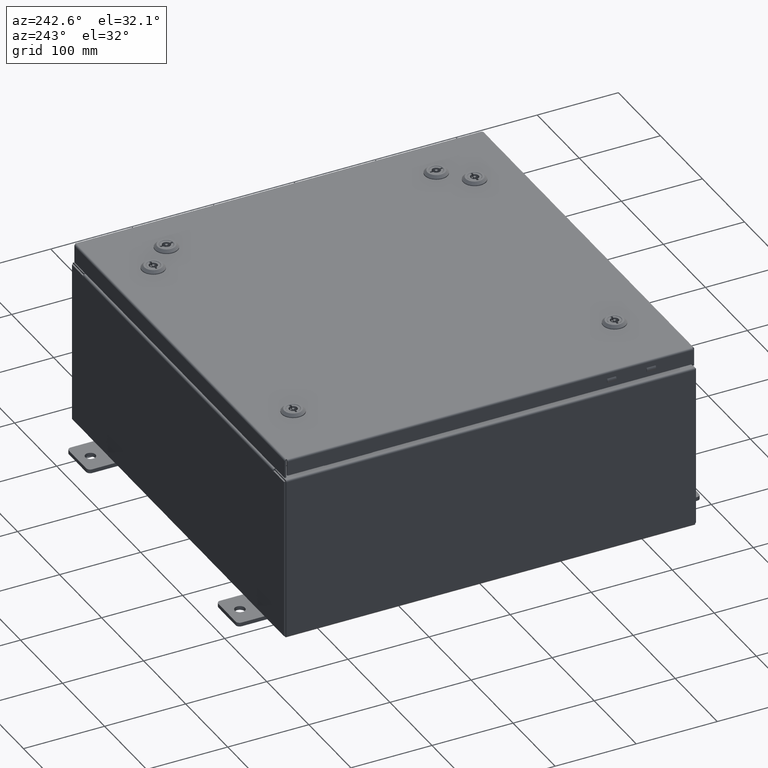
[diagram: clean part render]
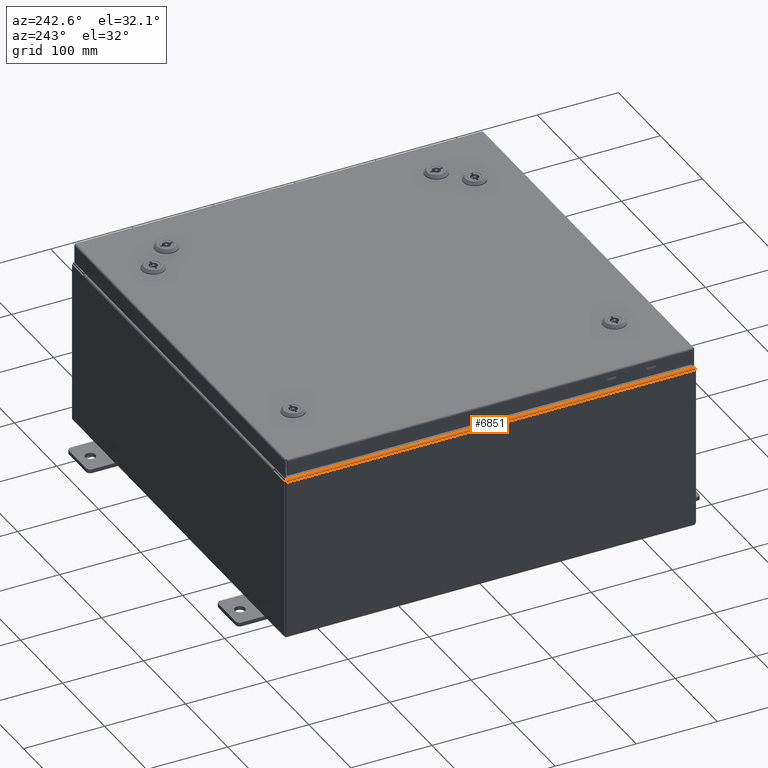
[diagram: same view with one face highlighted and labeled with its STEP entity id]
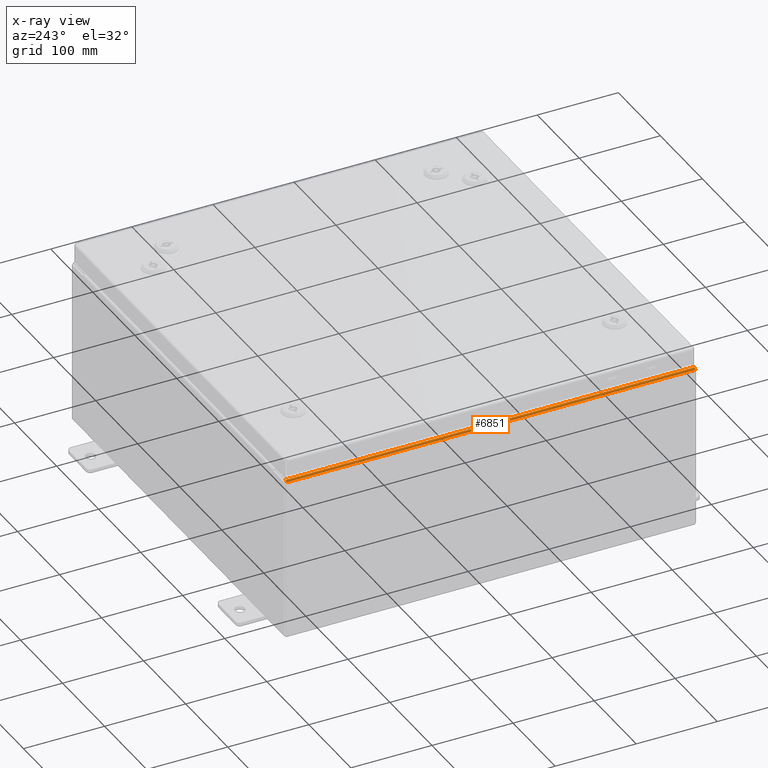
[diagram: x-ray of the same camera — body ghosted, the highlighted face saturated]
A machine part, auxiliary view. The second image highlights one B-rep face of the part: STEP entity #6851.
The next image is the same camera in x-ray: the body ghosted, the highlighted face saturated — about 0% of this face is hidden behind the body in this view.
In plain terms, the highlighted cylindrical surface (edge-blend (fillet) strip) has radius 2.2276 mm, axis along (-0, -1, -0).
Its self-contained STEP definition (entity closure, byte-faithful):
#435 = CIRCLE ( 'NONE', #29998, 0.08770000000000026400 ) ;
#1026 = CARTESIAN_POINT ( 'NONE',  ( -9.912300000000028500, -9.925299999999996500, 7.837599999999999200 ) ) ;
#1139 = ORIENTED_EDGE ( 'NONE', *, *, #30104, .T. ) ;
#2248 = EDGE_CURVE ( 'NONE', #27535, #30798, #52744, .T. ) ;
#3602 = CYLINDRICAL_SURFACE ( 'NONE', #40241, 0.08770000000000026400 ) ;
#5966 = DIRECTION ( 'NONE',  ( 0.0000000000000000000, 0.0000000000000000000, -1.000000000000000000 ) ) ;
#6851 = ADVANCED_FACE ( 'NONE', ( #55697 ), #3602, .T. ) ;
#8060 = EDGE_CURVE ( 'NONE', #30798, #60301, #435, .T. ) ;
#9919 = CARTESIAN_POINT ( 'NONE',  ( -9.912300000000028500, -9.925299999999998200, 7.925300000000000000 ) ) ;
#12184 = CARTESIAN_POINT ( 'NONE',  ( -9.912300000000028500, 9.925299999999998200, 7.925300000000000000 ) ) ;
#13886 = LINE ( 'NONE', #38070, #51490 ) ;
#15143 = VECTOR ( 'NONE', #39104, 39.37007874015748100 ) ;
#23411 = DIRECTION ( 'NONE',  ( 0.0000000000000000000, 1.000000000000000000, 0.0000000000000000000 ) ) ;
#24413 = CARTESIAN_POINT ( 'NONE',  ( -9.912300000000028500, -9.925299999999998200, 7.837599999999999200 ) ) ;
#27535 = VERTEX_POINT ( 'NONE', #31570 ) ;
#29349 = DIRECTION ( 'NONE',  ( 0.0000000000000000000, 0.0000000000000000000, 1.000000000000000000 ) ) ;
#29998 = AXIS2_PLACEMENT_3D ( 'NONE', #52820, #23411, #57725 ) ;
#30104 = EDGE_CURVE ( 'NONE', #38815, #60301, #13886, .T. ) ;
#30798 = VERTEX_POINT ( 'NONE', #36556 ) ;
#31570 = CARTESIAN_POINT ( 'NONE',  ( -10.00000000000002800, -9.925299999999996500, 7.837599999999999200 ) ) ;
#34065 = ORIENTED_EDGE ( 'NONE', *, *, #2248, .F. ) ;
#35313 = DIRECTION ( 'NONE',  ( -0.0000000000000000000, -1.000000000000000000, -0.0000000000000000000 ) ) ;
#36556 = CARTESIAN_POINT ( 'NONE',  ( -10.00000000000002800, 9.925299999999998200, 7.837599999999999200 ) ) ;
#38070 = CARTESIAN_POINT ( 'NONE',  ( -9.912300000000028500, 9.925299999999998200, 7.925300000000000000 ) ) ;
#38815 = VERTEX_POINT ( 'NONE', #9919 ) ;
#39104 = DIRECTION ( 'NONE',  ( 0.0000000000000000000, 1.000000000000000000, 0.0000000000000000000 ) ) ;
#39539 = CARTESIAN_POINT ( 'NONE',  ( -10.00000000000002800, -9.925299999999998200, 7.837599999999999200 ) ) ;
#40241 = AXIS2_PLACEMENT_3D ( 'NONE', #24413, #58710, #29349 ) ;
#42992 = DIRECTION ( 'NONE',  ( -0.0000000000000000000, 1.000000000000000000, -0.0000000000000000000 ) ) ;
#45133 = EDGE_LOOP ( 'NONE', ( #34065, #60861, #1139, #62839 ) ) ;
#51490 = VECTOR ( 'NONE', #42992, 39.37007874015748100 ) ;
#52744 = LINE ( 'NONE', #39539, #15143 ) ;
#52820 = CARTESIAN_POINT ( 'NONE',  ( -9.912300000000028500, 9.925299999999998200, 7.837599999999999200 ) ) ;
#53378 = EDGE_CURVE ( 'NONE', #38815, #27535, #58612, .T. ) ;
#55697 = FACE_OUTER_BOUND ( 'NONE', #45133, .T. ) ;
#57725 = DIRECTION ( 'NONE',  ( 0.0000000000000000000, 0.0000000000000000000, -1.000000000000000000 ) ) ;
#58612 = CIRCLE ( 'NONE', #59179, 0.08770000000000026400 ) ;
#58710 = DIRECTION ( 'NONE',  ( -0.0000000000000000000, -1.000000000000000000, -0.0000000000000000000 ) ) ;
#59179 = AXIS2_PLACEMENT_3D ( 'NONE', #1026, #35313, #5966 ) ;
#60301 = VERTEX_POINT ( 'NONE', #12184 ) ;
#60861 = ORIENTED_EDGE ( 'NONE', *, *, #53378, .F. ) ;
#62839 = ORIENTED_EDGE ( 'NONE', *, *, #8060, .F. ) ;